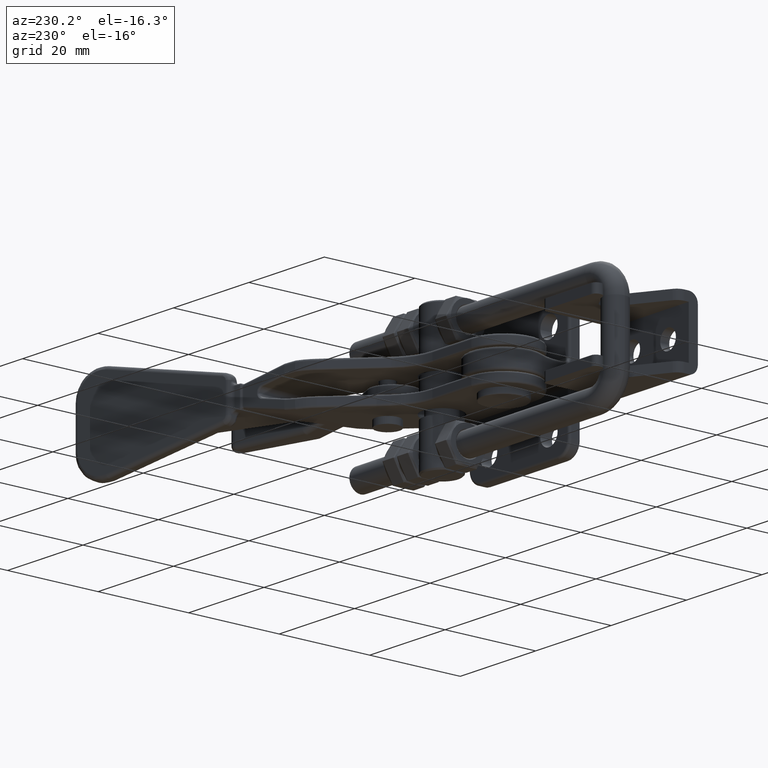
[diagram: clean part render]
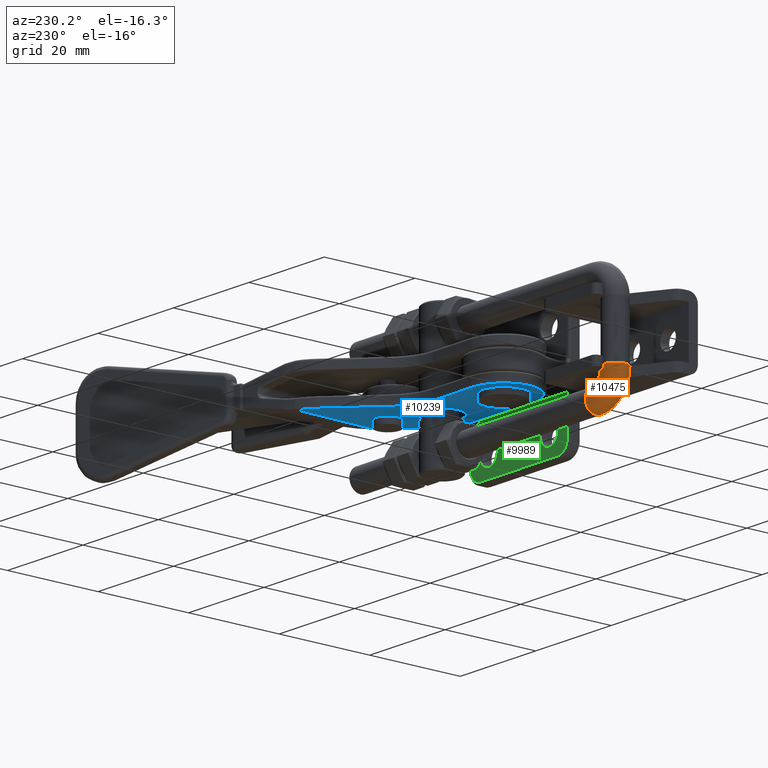
[diagram: same view with three faces highlighted in distinct colors, each labeled with its STEP entity id]
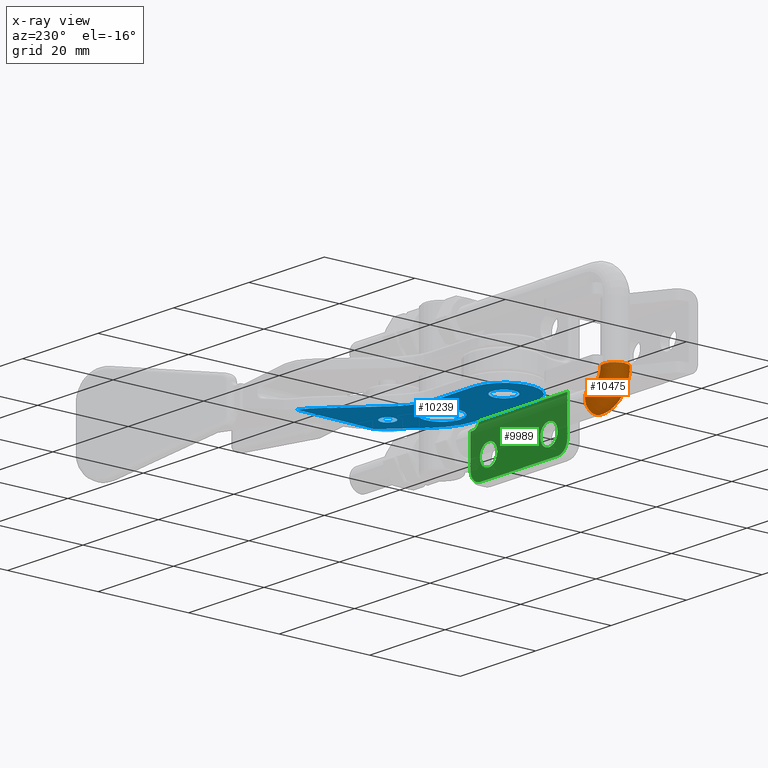
[diagram: x-ray of the same camera — body ghosted, the three highlighted faces saturated]
A machine part, auxiliary view with three faces highlighted in distinct colors.
The next image is the same camera in x-ray (body ghosted, the three faces saturated) — at least one of them is partly hidden behind the body in this view.
Their STEP definitions:

[orange] entity #10475 — the highlighted toroidal blend (fillet) surface has major radius 5 mm and minor (blend) radius 2.5 mm.
#863=TOROIDAL_SURFACE('',#11665,5.,2.5);
#2044=FACE_BOUND('',#3398,.T.);
#2660=FACE_OUTER_BOUND('',#3397,.T.);
#3397=EDGE_LOOP('',(#9273));
#3398=EDGE_LOOP('',(#9274));
#4062=CIRCLE('',#11664,2.5);
#4063=CIRCLE('',#11666,2.5);
#4915=VERTEX_POINT('',#27403);
#4916=VERTEX_POINT('',#27406);
#6384=EDGE_CURVE('',#4915,#4915,#4062,.T.);
#6385=EDGE_CURVE('',#4916,#4916,#4063,.T.);
#9273=ORIENTED_EDGE('',*,*,#6384,.F.);
#9274=ORIENTED_EDGE('',*,*,#6385,.T.);
#10475=ADVANCED_FACE('',(#2660,#2044),#863,.T.);
#11664=AXIS2_PLACEMENT_3D('',#27404,#14466,#14467);
#11665=AXIS2_PLACEMENT_3D('',#27405,#14468,#14469);
#11666=AXIS2_PLACEMENT_3D('',#27407,#14470,#14471);
#14466=DIRECTION('center_axis',(1.,9.06981408132947E-17,0.));
#14467=DIRECTION('ref_axis',(-9.06981408132947E-17,1.,0.));
#14468=DIRECTION('center_axis',(0.,0.,1.));
#14469=DIRECTION('ref_axis',(1.,0.,0.));
#14470=DIRECTION('center_axis',(1.51930480770662E-16,-1.,0.));
#14471=DIRECTION('ref_axis',(1.,1.51930480770662E-16,0.));
#27403=CARTESIAN_POINT('',(-28.75,-13.5,3.06161699786838E-16));
#27404=CARTESIAN_POINT('Origin',(-28.75,-11.,0.));
#27405=CARTESIAN_POINT('Origin',(-28.75,-6.00000000000001,0.));
#27406=CARTESIAN_POINT('',(-36.25,-6.00000000000001,3.06161699786838E-16));
#27407=CARTESIAN_POINT('Origin',(-33.75,-6.00000000000001,0.));

[blue] entity #10239 — the highlighted planar face has unit normal (-0, 0, -1).
#708=PLANE('',#11266);
#1154=LINE('',#21913,#1713);
#1155=LINE('',#21915,#1714);
#1156=LINE('',#21917,#1715);
#1157=LINE('',#21921,#1716);
#1158=LINE('',#21925,#1717);
#1159=LINE('',#21929,#1718);
#1713=VECTOR('',#13486,17.6380559992117);
#1714=VECTOR('',#13487,0.822680856211485);
#1715=VECTOR('',#13488,9.69376210357204);
#1716=VECTOR('',#13491,16.286026714554);
#1717=VECTOR('',#13494,10.3304641141323);
#1718=VECTOR('',#13497,12.647788644482);
#2020=FACE_BOUND('',#3138,.T.);
#2021=FACE_BOUND('',#3139,.T.);
#2022=FACE_BOUND('',#3140,.T.);
#2424=FACE_OUTER_BOUND('',#3137,.T.);
#3137=EDGE_LOOP('',(#8189,#8190,#8191,#8192,#8193,#8194,#8195,#8196,#8197,
#8198));
#3138=EDGE_LOOP('',(#8199));
#3139=EDGE_LOOP('',(#8200));
#3140=EDGE_LOOP('',(#8201));
#3858=CIRCLE('',#11267,9.8592);
#3859=CIRCLE('',#11268,6.7782);
#3860=CIRCLE('',#11269,10.6808);
#3861=CIRCLE('',#11270,9.8592);
#3862=CIRCLE('',#11271,4.15935);
#3863=CIRCLE('',#11272,1.625351069519);
#3864=CIRCLE('',#11273,2.61885);
#4593=VERTEX_POINT('',#21911);
#4594=VERTEX_POINT('',#21912);
#4595=VERTEX_POINT('',#21914);
#4596=VERTEX_POINT('',#21916);
#4597=VERTEX_POINT('',#21918);
#4598=VERTEX_POINT('',#21920);
#4599=VERTEX_POINT('',#21922);
#4600=VERTEX_POINT('',#21924);
#4601=VERTEX_POINT('',#21926);
#4602=VERTEX_POINT('',#21928);
#4603=VERTEX_POINT('',#21931);
#4604=VERTEX_POINT('',#21933);
#4605=VERTEX_POINT('',#21935);
#5842=EDGE_CURVE('',#4593,#4594,#1154,.T.);
#5843=EDGE_CURVE('',#4593,#4595,#1155,.T.);
#5844=EDGE_CURVE('',#4595,#4596,#1156,.T.);
#5845=EDGE_CURVE('',#4596,#4597,#3858,.T.);
#5846=EDGE_CURVE('',#4597,#4598,#1157,.T.);
#5847=EDGE_CURVE('',#4598,#4599,#3859,.T.);
#5848=EDGE_CURVE('',#4599,#4600,#1158,.T.);
#5849=EDGE_CURVE('',#4600,#4601,#3860,.T.);
#5850=EDGE_CURVE('',#4601,#4602,#1159,.T.);
#5851=EDGE_CURVE('',#4602,#4594,#3861,.T.);
#5852=EDGE_CURVE('',#4603,#4603,#3862,.T.);
#5853=EDGE_CURVE('',#4604,#4604,#3863,.T.);
#5854=EDGE_CURVE('',#4605,#4605,#3864,.T.);
#8189=ORIENTED_EDGE('',*,*,#5842,.F.);
#8190=ORIENTED_EDGE('',*,*,#5843,.T.);
#8191=ORIENTED_EDGE('',*,*,#5844,.T.);
#8192=ORIENTED_EDGE('',*,*,#5845,.T.);
#8193=ORIENTED_EDGE('',*,*,#5846,.T.);
#8194=ORIENTED_EDGE('',*,*,#5847,.T.);
#8195=ORIENTED_EDGE('',*,*,#5848,.T.);
#8196=ORIENTED_EDGE('',*,*,#5849,.T.);
#8197=ORIENTED_EDGE('',*,*,#5850,.T.);
#8198=ORIENTED_EDGE('',*,*,#5851,.T.);
#8199=ORIENTED_EDGE('',*,*,#5852,.T.);
#8200=ORIENTED_EDGE('',*,*,#5853,.T.);
#8201=ORIENTED_EDGE('',*,*,#5854,.T.);
#10239=ADVANCED_FACE('',(#2424,#2020,#2021,#2022),#708,.T.);
#11266=AXIS2_PLACEMENT_3D('',#21910,#13484,#13485);
#11267=AXIS2_PLACEMENT_3D('',#21919,#13489,#13490);
#11268=AXIS2_PLACEMENT_3D('',#21923,#13492,#13493);
#11269=AXIS2_PLACEMENT_3D('',#21927,#13495,#13496);
#11270=AXIS2_PLACEMENT_3D('',#21930,#13498,#13499);
#11271=AXIS2_PLACEMENT_3D('',#21932,#13500,#13501);
#11272=AXIS2_PLACEMENT_3D('',#21934,#13502,#13503);
#11273=AXIS2_PLACEMENT_3D('',#21936,#13504,#13505);
#13484=DIRECTION('center_axis',(0.,0.,-1.));
#13485=DIRECTION('ref_axis',(-1.,0.,0.));
#13486=DIRECTION('',(6.867983249328E-10,1.,0.));
#13487=DIRECTION('',(-0.73099573466945,-0.682382030753353,0.));
#13488=DIRECTION('',(-0.731551075035199,-0.681786641563799,0.));
#13489=DIRECTION('center_axis',(0.,0.,-1.));
#13490=DIRECTION('ref_axis',(0.652590753053409,-0.75771057075191,0.));
#13491=DIRECTION('',(-0.999409005049403,0.0343750000169101,0.));
#13492=DIRECTION('center_axis',(0.,0.,-1.));
#13493=DIRECTION('ref_axis',(-0.0343750000148791,-0.999409005049473,0.));
#13494=DIRECTION('',(0.999409005049402,-0.0343750000169301,0.));
#13495=DIRECTION('center_axis',(0.,0.,1.));
#13496=DIRECTION('ref_axis',(-0.03437500001699,-0.9994090050494,0.));
#13497=DIRECTION('',(0.730995680264583,0.682382089034084,0.));
#13498=DIRECTION('center_axis',(0.,0.,-1.));
#13499=DIRECTION('ref_axis',(-0.682382089032481,0.730995680266079,0.));
#13500=DIRECTION('center_axis',(0.,0.,1.));
#13501=DIRECTION('ref_axis',(-1.,0.,0.));
#13502=DIRECTION('center_axis',(0.,0.,1.));
#13503=DIRECTION('ref_axis',(-1.,0.,0.));
#13504=DIRECTION('center_axis',(0.,0.,1.));
#13505=DIRECTION('ref_axis',(-1.,0.,0.));
#21910=CARTESIAN_POINT('Origin',(1243.13276919,717.8339134774,-4.36475));
#21911=CARTESIAN_POINT('',(1280.522861358,656.6252618525,-4.36475));
#21912=CARTESIAN_POINT('',(1280.5228613665,674.263317851712,-4.36475000000001));
#21913=CARTESIAN_POINT('',(1280.522861358,656.6252618525,-4.36475));
#21914=CARTESIAN_POINT('',(1279.921485161,656.0638792193,-4.36475));
#21915=CARTESIAN_POINT('',(1280.522861358,656.6252618525,-4.36475));
#21916=CARTESIAN_POINT('',(1272.83000307337,649.454801710185,-4.36475));
#21917=CARTESIAN_POINT('',(1279.921485161,656.0638792193,-4.36475));
#21918=CARTESIAN_POINT('',(1266.05707032,647.0718485072,-4.36475));
#21919=CARTESIAN_POINT('Origin',(1266.39598032,656.9252217698,-4.36475));
#21920=CARTESIAN_POINT('',(1249.780668565,647.6316806758,-4.36475));
#21921=CARTESIAN_POINT('',(1266.05707032,647.0718485072,-4.36475));
#21922=CARTESIAN_POINT('',(1250.246669816,661.1800689119,-4.36475));
#21923=CARTESIAN_POINT('Origin',(1250.01366919,654.4058747938,-4.36475));
#21924=CARTESIAN_POINT('',(1260.571028678,660.8249592077,-4.36475));
#21925=CARTESIAN_POINT('',(1250.246669816,661.1800689119,-4.36475));
#21926=CARTESIAN_POINT('',(1268.226567795,663.6918282471,-4.36475));
#21927=CARTESIAN_POINT('Origin',(1260.938181178,671.4994469089,-4.36475));
#21928=CARTESIAN_POINT('',(1277.472046659,672.322452684,-4.36475));
#21929=CARTESIAN_POINT('',(1268.226567795,663.6918282471,-4.36475));
#21930=CARTESIAN_POINT('Origin',(1284.199788151,665.1154200731,-4.36475));
#21931=CARTESIAN_POINT('',(1270.595307961,653.8410247936,-4.36475000000002));
#21932=CARTESIAN_POINT('Origin',(1266.435957961,653.8410247936,-4.36475));
#21933=CARTESIAN_POINT('',(1273.198266902,658.6905650343,-4.36475));
#21934=CARTESIAN_POINT('Origin',(1274.823617972,658.6905650343,-4.36475));
#21935=CARTESIAN_POINT('',(1252.63251919,654.4058747938,-4.36475));
#21936=CARTESIAN_POINT('Origin',(1250.01366919,654.4058747938,-4.36475));

[green] entity #9989 — the highlighted planar face has unit normal (0, 1, 0).
#349=B_SPLINE_CURVE_WITH_KNOTS('',3,(#16395,#16396,#16397,#16398),
 .UNSPECIFIED.,.F.,.F.,(4,4),(0.,1.),.UNSPECIFIED.);
#661=PLANE('',#10816);
#1000=LINE('',#16207,#1559);
#1001=LINE('',#16215,#1560);
#1002=LINE('',#16223,#1561);
#1003=LINE('',#16376,#1562);
#1004=LINE('',#16439,#1563);
#1005=LINE('',#16440,#1564);
#1559=VECTOR('',#12398,8.2159999447727);
#1560=VECTOR('',#12409,20.5399999425265);
#1561=VECTOR('',#12420,6.93224984064348);
#1562=VECTOR('',#12429,0.532956084040367);
#1563=VECTOR('',#12436,23.2107201649998);
#1564=VECTOR('',#12437,1.28281111579774);
#1994=FACE_BOUND('',#2862,.T.);
#1995=FACE_BOUND('',#2863,.T.);
#2174=FACE_OUTER_BOUND('',#2861,.T.);
#2861=EDGE_LOOP('',(#7087,#7088,#7089,#7090,#7091,#7092,#7093,#7094,#7095));
#2862=EDGE_LOOP('',(#7096));
#2863=EDGE_LOOP('',(#7097));
#3490=CIRCLE('',#10565,2.3);
#3492=CIRCLE('',#10568,2.3);
#3626=CIRCLE('',#10802,2.5675);
#3629=CIRCLE('',#10807,2.5675);
#4114=VERTEX_POINT('',#14793);
#4116=VERTEX_POINT('',#14798);
#4311=VERTEX_POINT('',#16201);
#4312=VERTEX_POINT('',#16205);
#4313=VERTEX_POINT('',#16209);
#4314=VERTEX_POINT('',#16213);
#4315=VERTEX_POINT('',#16217);
#4316=VERTEX_POINT('',#16221);
#4318=VERTEX_POINT('',#16375);
#4319=VERTEX_POINT('',#16394);
#4321=VERTEX_POINT('',#16438);
#5027=EDGE_CURVE('',#4114,#4114,#3490,.T.);
#5029=EDGE_CURVE('',#4116,#4116,#3492,.T.);
#5333=EDGE_CURVE('',#4311,#4312,#1000,.T.);
#5335=EDGE_CURVE('',#4313,#4312,#3626,.T.);
#5337=EDGE_CURVE('',#4313,#4314,#1001,.T.);
#5339=EDGE_CURVE('',#4315,#4314,#3629,.T.);
#5341=EDGE_CURVE('',#4315,#4316,#1002,.T.);
#5345=EDGE_CURVE('',#4316,#4318,#1003,.T.);
#5347=EDGE_CURVE('',#4319,#4318,#349,.T.);
#5350=EDGE_CURVE('',#4321,#4311,#1004,.T.);
#5351=EDGE_CURVE('',#4321,#4319,#1005,.T.);
#7087=ORIENTED_EDGE('',*,*,#5345,.F.);
#7088=ORIENTED_EDGE('',*,*,#5341,.F.);
#7089=ORIENTED_EDGE('',*,*,#5339,.T.);
#7090=ORIENTED_EDGE('',*,*,#5337,.F.);
#7091=ORIENTED_EDGE('',*,*,#5335,.T.);
#7092=ORIENTED_EDGE('',*,*,#5333,.F.);
#7093=ORIENTED_EDGE('',*,*,#5350,.F.);
#7094=ORIENTED_EDGE('',*,*,#5351,.T.);
#7095=ORIENTED_EDGE('',*,*,#5347,.T.);
#7096=ORIENTED_EDGE('',*,*,#5027,.T.);
#7097=ORIENTED_EDGE('',*,*,#5029,.T.);
#9989=ADVANCED_FACE('',(#2174,#1994,#1995),#661,.T.);
#10565=AXIS2_PLACEMENT_3D('',#14794,#11793,#11794);
#10568=AXIS2_PLACEMENT_3D('',#14799,#11799,#11800);
#10802=AXIS2_PLACEMENT_3D('',#16211,#12403,#12404);
#10807=AXIS2_PLACEMENT_3D('',#16219,#12414,#12415);
#10816=AXIS2_PLACEMENT_3D('',#16437,#12434,#12435);
#11793=DIRECTION('center_axis',(0.,-1.,0.));
#11794=DIRECTION('ref_axis',(1.,0.,0.));
#11799=DIRECTION('center_axis',(0.,-1.,0.));
#11800=DIRECTION('ref_axis',(1.,0.,0.));
#12398=DIRECTION('',(2.767449818326E-14,0.,-1.));
#12403=DIRECTION('center_axis',(0.,1.,0.));
#12404=DIRECTION('ref_axis',(1.75157565483094E-6,0.,-0.999999999998466));
#12409=DIRECTION('',(1.,0.,0.));
#12414=DIRECTION('center_axis',(0.,1.,0.));
#12415=DIRECTION('ref_axis',(0.999999999997636,0.,2.17438521672508E-6));
#12420=DIRECTION('',(2.649116858589E-8,0.,1.));
#12429=DIRECTION('',(-0.999999999999569,2.13312762078793E-13,-9.28708629741671E-7));
#12434=DIRECTION('center_axis',(0.,1.,0.));
#12435=DIRECTION('ref_axis',(0.,0.,1.));
#12436=DIRECTION('',(-1.,0.,-4.25707812989E-14));
#12437=DIRECTION('',(0.707106781186498,8.86232090806997E-14,-0.707106781186597));
#14793=CARTESIAN_POINT('',(1252.57866919,644.1358747938,-9.50000011095));
#14794=CARTESIAN_POINT('Origin',(1250.27866919,644.1358747938,-9.50000011095));
#14798=CARTESIAN_POINT('',(1268.57866919,644.1358747938,-9.50000011095));
#14799=CARTESIAN_POINT('Origin',(1266.27866919,644.1358747938,-9.50000011095));
#16201=CARTESIAN_POINT('',(1245.39216919,644.1358747938,-3.081));
#16205=CARTESIAN_POINT('',(1245.39216919,644.1358747938,-11.2969999447727));
#16207=CARTESIAN_POINT('',(1245.39216919,644.1358747938,-3.081));
#16209=CARTESIAN_POINT('',(1247.95966925181,644.1358747938,-13.8645001479425));
#16211=CARTESIAN_POINT('Origin',(1247.95966919,644.1358747938,-11.297));
#16213=CARTESIAN_POINT('',(1268.49966919433,644.1358747938,-13.8645001479347));
#16215=CARTESIAN_POINT('',(1247.959670705,644.1358747938,-13.86450029587));
#16217=CARTESIAN_POINT('',(1271.06716937401,644.1358747938,-11.2969999515935));
#16219=CARTESIAN_POINT('Origin',(1268.49966919,644.1358747938,-11.297));
#16221=CARTESIAN_POINT('',(1271.067169741,644.1358747938,-4.36475011095));
#16223=CARTESIAN_POINT('',(1271.067169558,644.1358747938,-11.29699813909));
#16375=CARTESIAN_POINT('',(1270.53421365696,644.1358747938,-4.36475060591196));
#16376=CARTESIAN_POINT('',(1271.067169741,644.1358747938,-4.36475011095));
#16394=CARTESIAN_POINT('',(1269.509973794,644.1358747938,-3.988084438923));
#16395=CARTESIAN_POINT('Ctrl Pts',(1269.509973794,644.1358747938,-3.988084438923));
#16396=CARTESIAN_POINT('Ctrl Pts',(1269.787764643,644.1358747938,-4.237046523508));
#16397=CARTESIAN_POINT('Ctrl Pts',(1270.161100501,644.1358747938,-4.36474944997));
#16398=CARTESIAN_POINT('Ctrl Pts',(1270.534211298,644.1358747938,-4.364750605913));
#16437=CARTESIAN_POINT('Origin',(1247.95966919,644.1358747938,0.));
#16438=CARTESIAN_POINT('',(1268.602889355,644.1358747938,-3.080999999999));
#16439=CARTESIAN_POINT('',(1268.602889355,644.1358747938,-3.080999999999));
#16440=CARTESIAN_POINT('',(1268.602889355,644.1358747938,-3.080999999999));